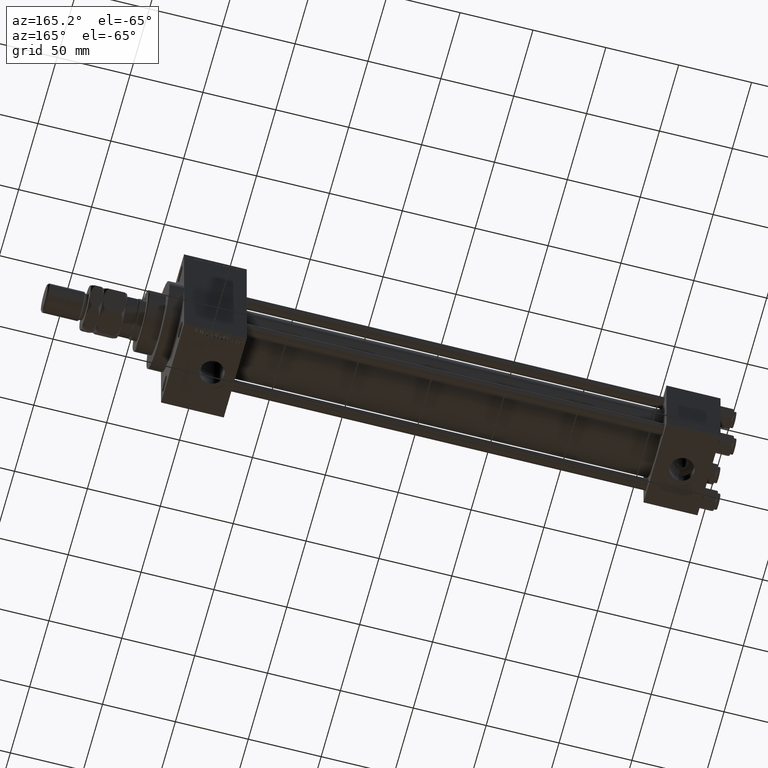
[diagram: clean part render]
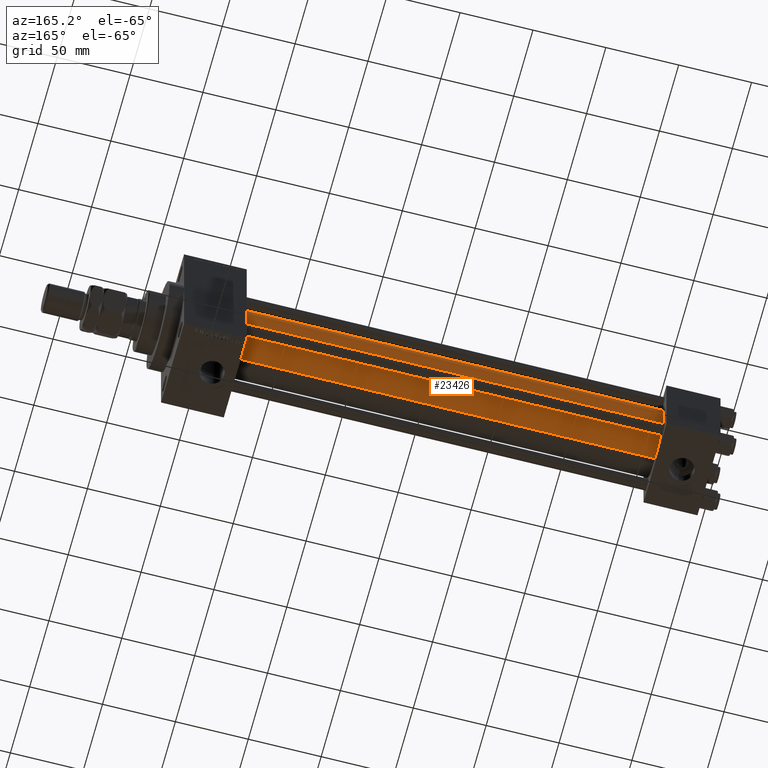
[diagram: same view with one face highlighted and labeled with its STEP entity id]
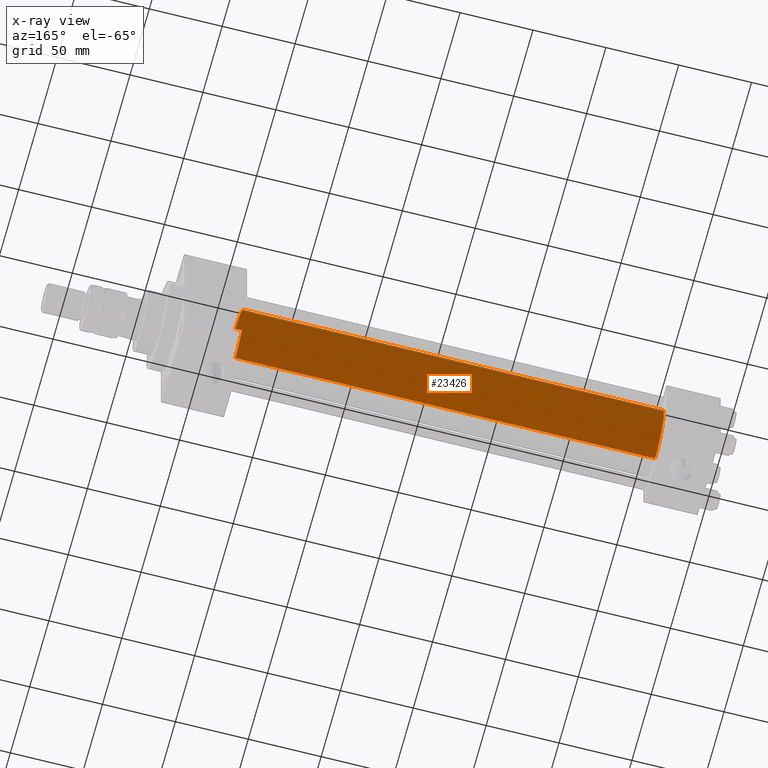
[diagram: x-ray of the same camera — body ghosted, the highlighted face saturated]
A machine part, auxiliary view. The second image highlights one B-rep face of the part: STEP entity #23426.
The next image is the same camera in x-ray: the body ghosted, the highlighted face saturated — about 0% of this face is hidden behind the body in this view.
In plain terms, the highlighted cylindrical surface (edge-blend (fillet) strip) has radius 23 mm, axis along (-1, -0, -0).
Its self-contained STEP definition (entity closure, byte-faithful):
#537 = DIRECTION ( 'NONE',  ( -1.000000000000000000, -0.000000000000000000, -0.000000000000000000 ) ) ;
#2478 = CARTESIAN_POINT ( 'NONE',  ( 324.9999999999999432, 2.146024240737016609E-16, -23.00000000000000000 ) ) ;
#5678 = CARTESIAN_POINT ( 'NONE',  ( 324.9999999999999432, -2.602085213965210642E-15, 23.00000000000000000 ) ) ;
#7377 = LINE ( 'NONE', #2478, #39132 ) ;
#8704 = CIRCLE ( 'NONE', #44028, 23.00000000000000000 ) ;
#9081 = ORIENTED_EDGE ( 'NONE', *, *, #47869, .F. ) ;
#11059 = CIRCLE ( 'NONE', #39798, 23.00000000000000000 ) ;
#13523 = DIRECTION ( 'NONE',  ( 1.000000000000000000, -0.000000000000000000, 0.000000000000000000 ) ) ;
#15582 = CARTESIAN_POINT ( 'NONE',  ( 36.99999999999997868, 2.146024240737016609E-16, -23.00000000000000000 ) ) ;
#15945 = CARTESIAN_POINT ( 'NONE',  ( 324.9999999999999432, -2.602085213965210642E-15, 0.000000000000000000 ) ) ;
#18850 = CARTESIAN_POINT ( 'NONE',  ( 324.9999999999999432, -2.602085213965210642E-15, 0.000000000000000000 ) ) ;
#19341 = EDGE_CURVE ( 'NONE', #33647, #21149, #11059, .T. ) ;
#21149 = VERTEX_POINT ( 'NONE', #40405 ) ;
#22394 = EDGE_CURVE ( 'NONE', #24220, #40890, #8704, .T. ) ;
#23186 = LINE ( 'NONE', #32143, #28165 ) ;
#23426 = ADVANCED_FACE ( 'NONE', ( #24170 ), #50247, .T. ) ;
#24170 = FACE_OUTER_BOUND ( 'NONE', #34301, .T. ) ;
#24220 = VERTEX_POINT ( 'NONE', #24294 ) ;
#24294 = CARTESIAN_POINT ( 'NONE',  ( 324.9999999999999432, 2.146024240737016609E-16, -23.00000000000000000 ) ) ;
#24336 = AXIS2_PLACEMENT_3D ( 'NONE', #18850, #42519, #30667 ) ;
#26989 = CARTESIAN_POINT ( 'NONE',  ( 36.99999999999997868, -2.602085213965210642E-15, 0.000000000000000000 ) ) ;
#27185 = EDGE_CURVE ( 'NONE', #24220, #33647, #7377, .T. ) ;
#28165 = VECTOR ( 'NONE', #537, 1000.000000000000000 ) ;
#29982 = DIRECTION ( 'NONE',  ( -1.000000000000000000, -0.000000000000000000, -0.000000000000000000 ) ) ;
#30667 = DIRECTION ( 'NONE',  ( 0.000000000000000000, 0.000000000000000000, 1.000000000000000000 ) ) ;
#32143 = CARTESIAN_POINT ( 'NONE',  ( 324.9999999999999432, -2.602085213965210642E-15, 23.00000000000000000 ) ) ;
#33647 = VERTEX_POINT ( 'NONE', #15582 ) ;
#34301 = EDGE_LOOP ( 'NONE', ( #46673, #46743, #47802, #9081 ) ) ;
#39132 = VECTOR ( 'NONE', #29982, 1000.000000000000000 ) ;
#39798 = AXIS2_PLACEMENT_3D ( 'NONE', #26989, #13523, #45411 ) ;
#40405 = CARTESIAN_POINT ( 'NONE',  ( 36.99999999999997868, -2.602085213965210642E-15, 23.00000000000000000 ) ) ;
#40890 = VERTEX_POINT ( 'NONE', #5678 ) ;
#42519 = DIRECTION ( 'NONE',  ( -1.000000000000000000, -0.000000000000000000, -0.000000000000000000 ) ) ;
#42967 = DIRECTION ( 'NONE',  ( 1.000000000000000000, 0.000000000000000000, 0.000000000000000000 ) ) ;
#44028 = AXIS2_PLACEMENT_3D ( 'NONE', #15945, #42967, #50694 ) ;
#45411 = DIRECTION ( 'NONE',  ( 0.000000000000000000, 0.000000000000000000, 1.000000000000000000 ) ) ;
#46673 = ORIENTED_EDGE ( 'NONE', *, *, #22394, .F. ) ;
#46743 = ORIENTED_EDGE ( 'NONE', *, *, #27185, .T. ) ;
#47802 = ORIENTED_EDGE ( 'NONE', *, *, #19341, .T. ) ;
#47869 = EDGE_CURVE ( 'NONE', #40890, #21149, #23186, .T. ) ;
#50247 = CYLINDRICAL_SURFACE ( 'NONE', #24336, 23.00000000000000000 ) ;
#50694 = DIRECTION ( 'NONE',  ( 0.000000000000000000, 0.000000000000000000, -1.000000000000000000 ) ) ;